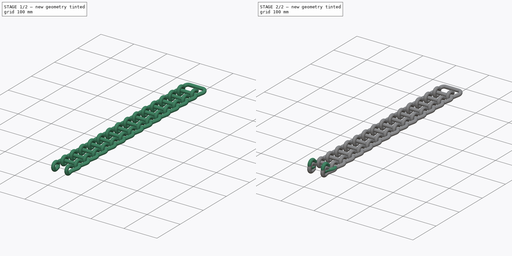
[diagram: build sequence overview — one tinted view per stage of 2, left to right]
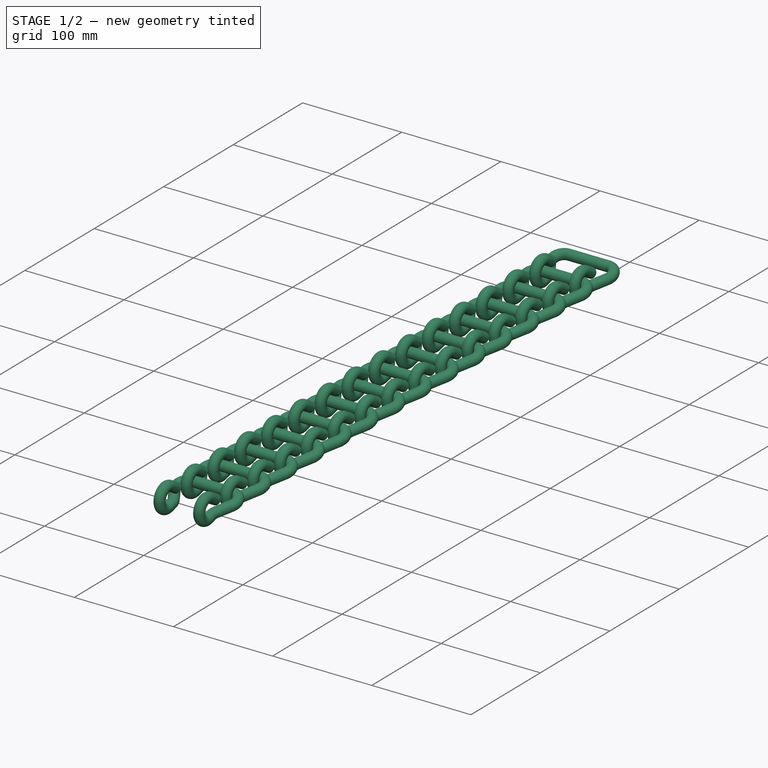
[diagram: stage 1 of 2 — iso view after this stage's code; geometry added in this stage tinted green]
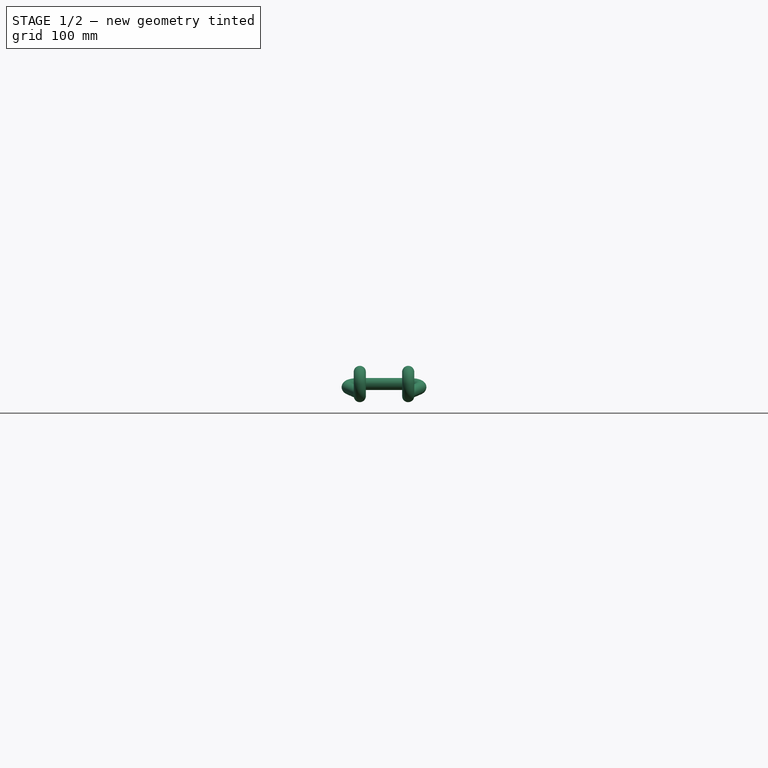
[diagram: stage 1 of 2 — front view after this stage's code; geometry added in this stage tinted green]
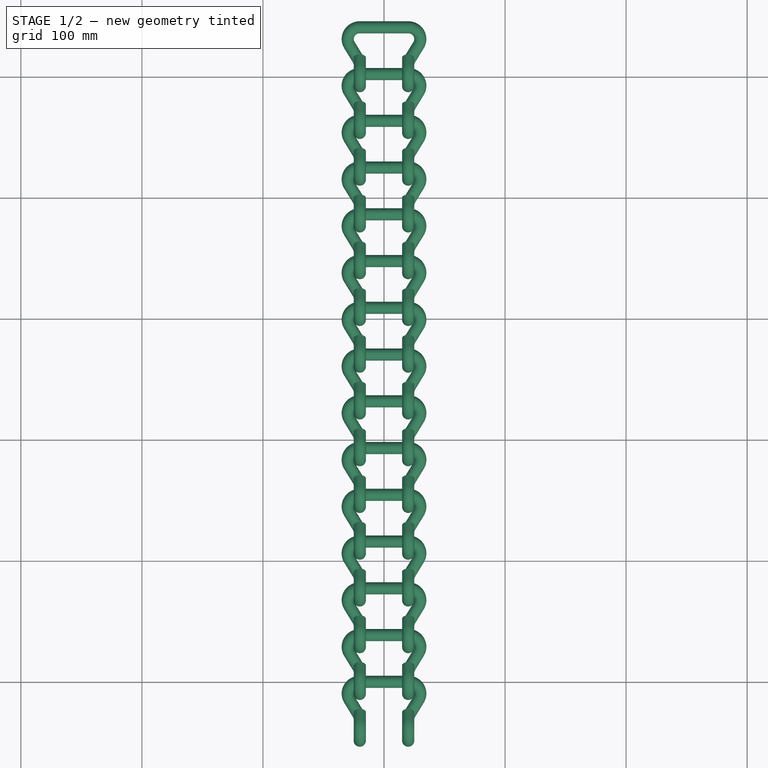
[diagram: stage 1 of 2 — top view after this stage's code; geometry added in this stage tinted green]
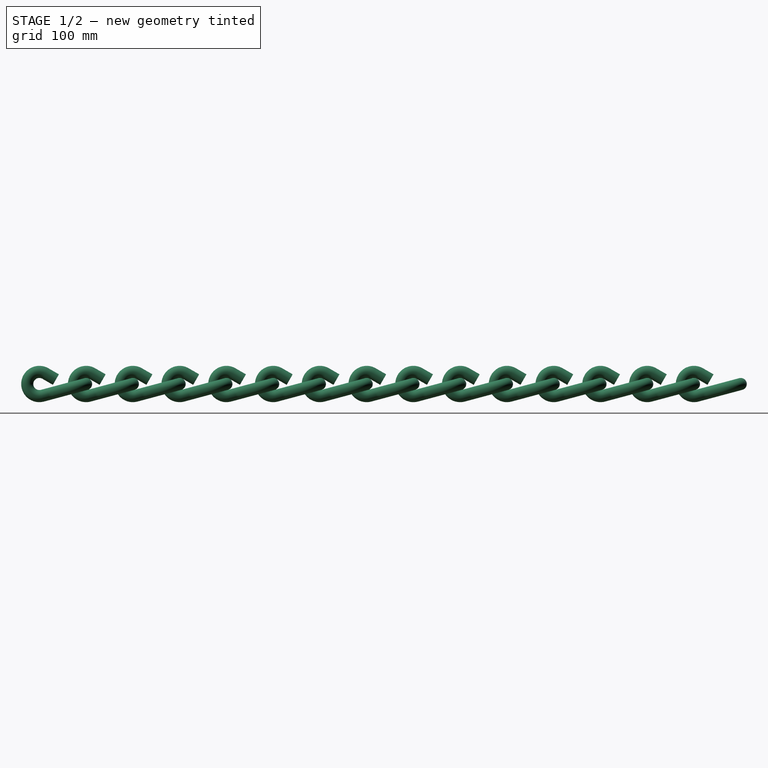
[diagram: stage 1 of 2 — right view after this stage's code; geometry added in this stage tinted green]
FCSTD DOCUMENT  (FreeCAD 0.18R13516 (Git))
Label: CORRENTE 1
License: CreativeCommons Attribution-NonCommercial-ShareAlike
LicenseURL: http://creativecommons.org/licenses/by-nc-sa/4.0/
objects: PartDesign::FeatureBase×4, Sketcher::SketchObject×2, PartDesign::Body×2, Part::MultiFuse×1, Part::Circle×1, Part::Sweep×1, Part::Feature×1, Part::FeaturePython×1
note: 13 computed .brp shape members not serialized (recipe doc carries the construction recipe); baked Part::Feature solids carry a one-line shape summary decoded from their .brp

FEATURE [Part::Feature] Sweep001
  Placement = pos=(0,0,0) rot=(1,0,0;0.261799rad)
  shape: bbox 72.47 x 60.34 x 31.37 mm, 15 faces (baked)
FEATURE [Part::FeaturePython] Array  # Draft array (typed FeaturePython)
  Angle = 360
  ArrayType = 0
  Axis = (0,0,1)
  Base = -> Sweep001
  Center = (0,0,0)
  Fuse = false
  IntervalAxis = (0,0,0)
  IntervalX = (0,0,0)
  IntervalY = (0,38.63,0)
  IntervalZ = (0,0,0)
  NumberPolar = 2
  NumberX = 1
  NumberY = 15
  NumberZ = 1
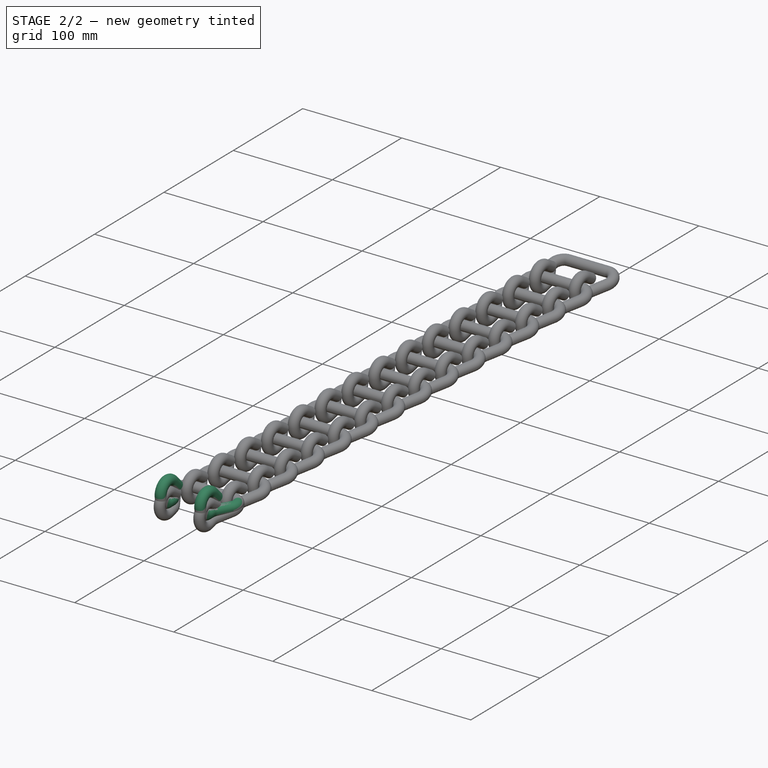
[diagram: stage 2 of 2 — iso view after this stage's code; geometry added in this stage tinted green]
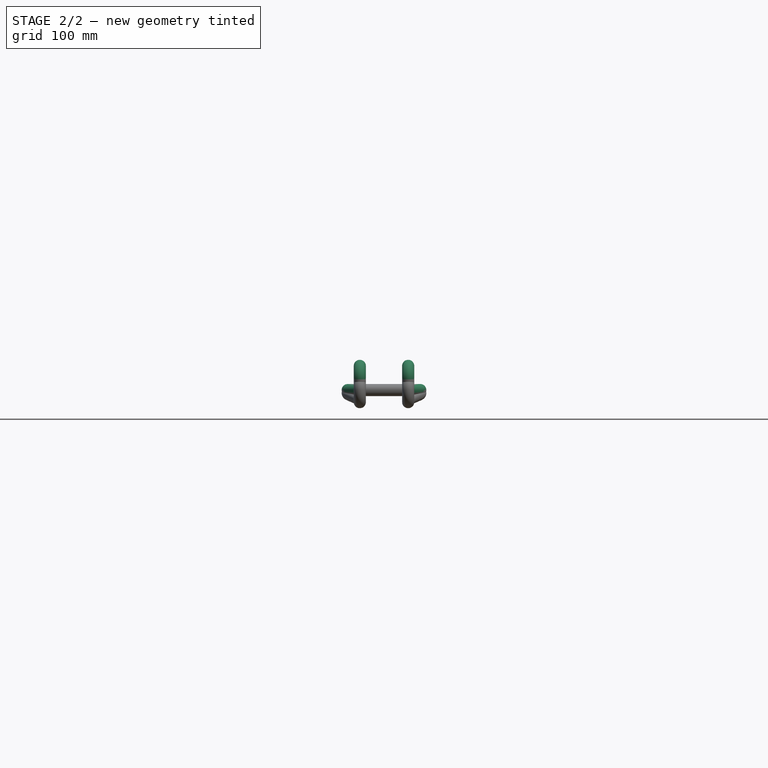
[diagram: stage 2 of 2 — front view after this stage's code; geometry added in this stage tinted green]
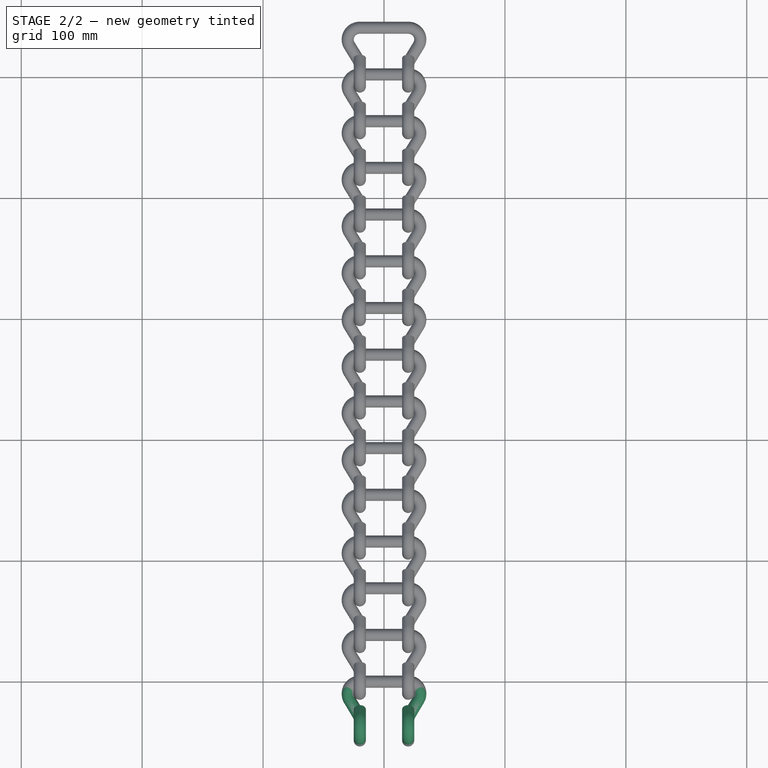
[diagram: stage 2 of 2 — top view after this stage's code; geometry added in this stage tinted green]
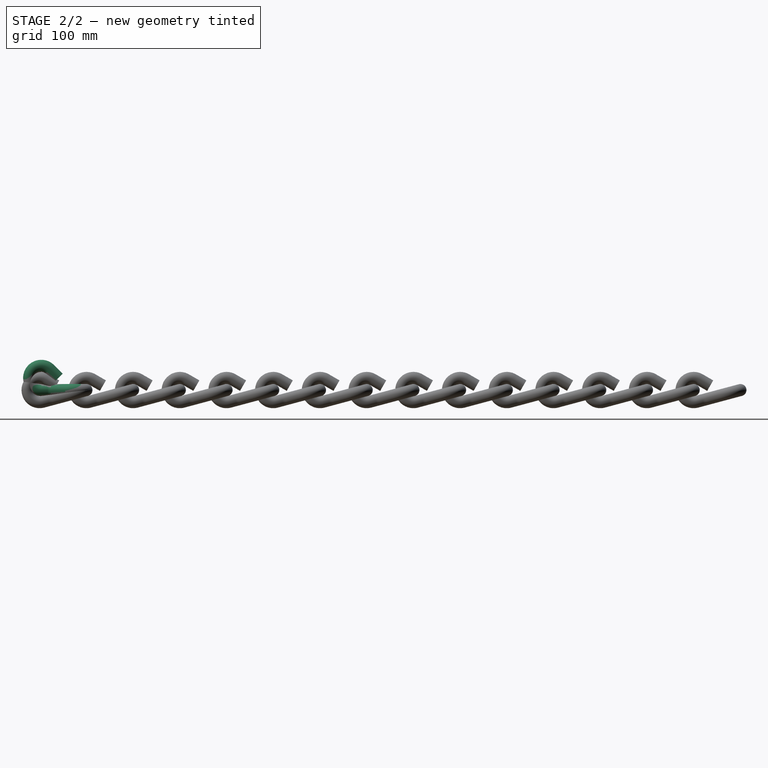
[diagram: stage 2 of 2 — right view after this stage's code; geometry added in this stage tinted green]
FEATURE [Sketcher::SketchObject] Sketch
  MapMode = 5
  Support = -> [XY_Plane]
  sketch-geometry (5):
    g0: LineSegment StartX=0 StartY=0 StartZ=0 EndX=-20 EndY=0 EndZ=0
    g1: ArcOfCircle CenterX=-20 CenterY=-10 CenterZ=0 NormalX=0 NormalY=0 NormalZ=1 AngleXU=0 Radius=10 StartAngle=1.5708 EndAngle=3.67785
    g2: LineSegment StartX=-28.5963 StartY=-15.1092 StartZ=0 EndX=-21.4037 EndY=-27.2108 EndZ=0
    g3: ArcOfCircle CenterX=-30 CenterY=-32.32 CenterZ=0 NormalX=0 NormalY=0 NormalZ=1 AngleXU=0 Radius=10 StartAngle=0 EndAngle=0.536253
    g4: LineSegment StartX=-20 StartY=-32.32 StartZ=0 EndX=-20 EndY=-37.32 EndZ=0
  constraints (13):
    c: Coincident(g-1,g0)
    c: PointOnObject(g0,g-1)
    c: Tangent(g0,g1) = -1.5708
    c: Tangent(g1,g2) = -1.5708
    c: Tangent(g2,g3) = 1.5708
    c: Tangent(g3,g4) = 1.5708
    c: Vertical(g4)
    c: Vertical(g4,g0)
    c: Equal(g3,g1)
    c: DistanceY(g4,g4) = 5
    c: Radius(g1) = 10
    c: DistanceY(g4,g0) = 37.32
    c: DistanceX(g0,g0) = 20
FEATURE [PartDesign::Body] Body
  Group = -> [Sketch]
  Origin = -> Origin
FEATURE [Sketcher::SketchObject] Sketch001
  MapMode = 5
  Placement = pos=(0,0,0) rot=(0.57735,0.57735,0.57735;2.0944rad)
  Support = -> [YZ_Plane001]
  sketch-geometry (2):
    g0: LineSegment StartX=14.1421 StartY=10 StartZ=0 EndX=7.07107 EndY=17.0711 EndZ=0
    g1: ArcOfCircle CenterX=0 CenterY=10 CenterZ=0 NormalX=0 NormalY=0 NormalZ=1 AngleXU=0 Radius=10 StartAngle=0.785398 EndAngle=4.71239
  constraints (6):
    c: Tangent(g0,g1) = -1.5708
    c: Coincident(g1,g-1)
    c: PointOnObject(g1,g-2)
    c: Radius(g1) = 10
    c: Angle(g0,g-1) = 0.785398
    c: Distance(g0) = 10
FEATURE [PartDesign::Body] Body001
  Group = -> [Sketch001]
  Origin = -> Origin001
FEATURE [PartDesign::FeatureBase] Clone
  BaseFeature = -> Sketch
  Placement = pos=(0,0,0) rot=(0,1,0;3.14159rad)
FEATURE [PartDesign::FeatureBase] Clone001
  BaseFeature = -> Sketch001
  Placement = pos=(-20,-37.32,0) rot=(0.57735,0.57735,0.57735;2.0944rad)
FEATURE [PartDesign::FeatureBase] Clone002
  BaseFeature = -> Clone001
  Placement = pos=(20,-37.32,0) rot=(0.57735,0.57735,0.57735;2.0944rad)
FEATURE [PartDesign::FeatureBase] Clone003
  BaseFeature = -> Sketch
FEATURE [Part::MultiFuse] Fusion
  Shapes = -> [Clone003,Clone002,Clone001,Clone]
FEATURE [Part::Circle] Circle
  Angle0 = 0
  Angle1 = 360
  AttacherType = Attacher::AttachEngine3D
  Placement = pos=(0,0,0) rot=(0,1,0;4.71239rad)
  Radius = 5
FEATURE [Part::Sweep] Sweep
  Frenet = true
  Sections = -> [Circle]
  Solid = true
  Spine = -> Fusion [Edge8,Edge9,Edge5,Edge4,Edge3,Edge2,Edge1,Edge10,Edge11,Edge12,Edge13,Edge14,Edge7,Edge6]
  Transition = 1
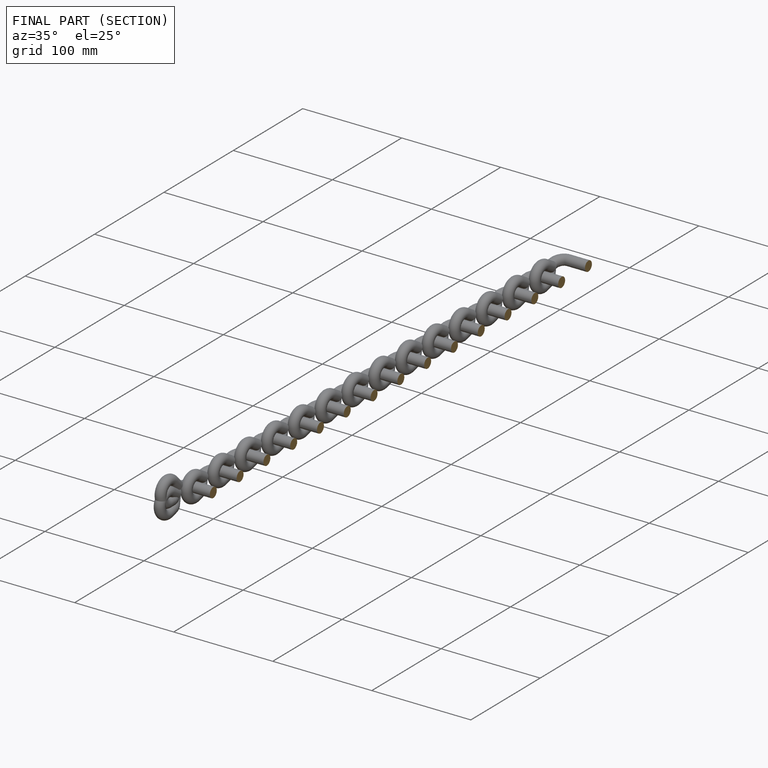
[diagram: finished part — half-section view (interior)]
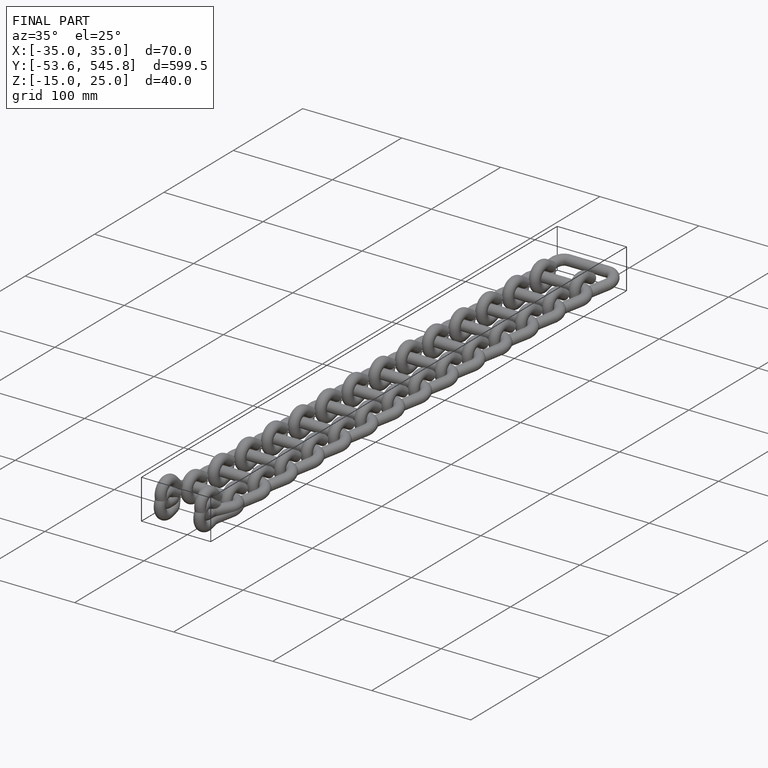
[diagram: finished part — iso view with bounding-box wireframe]
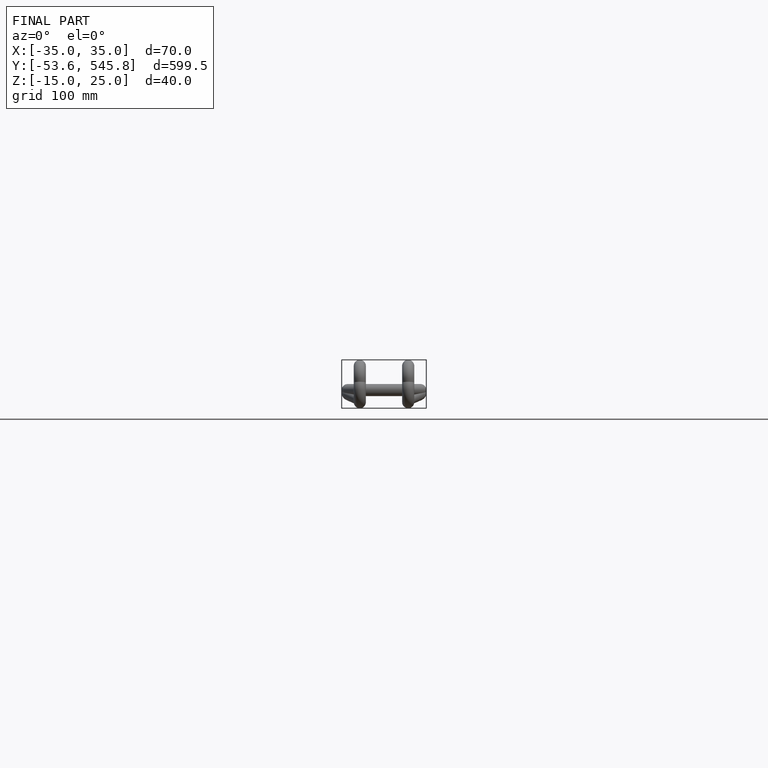
[diagram: finished part — front view with bounding-box wireframe]
